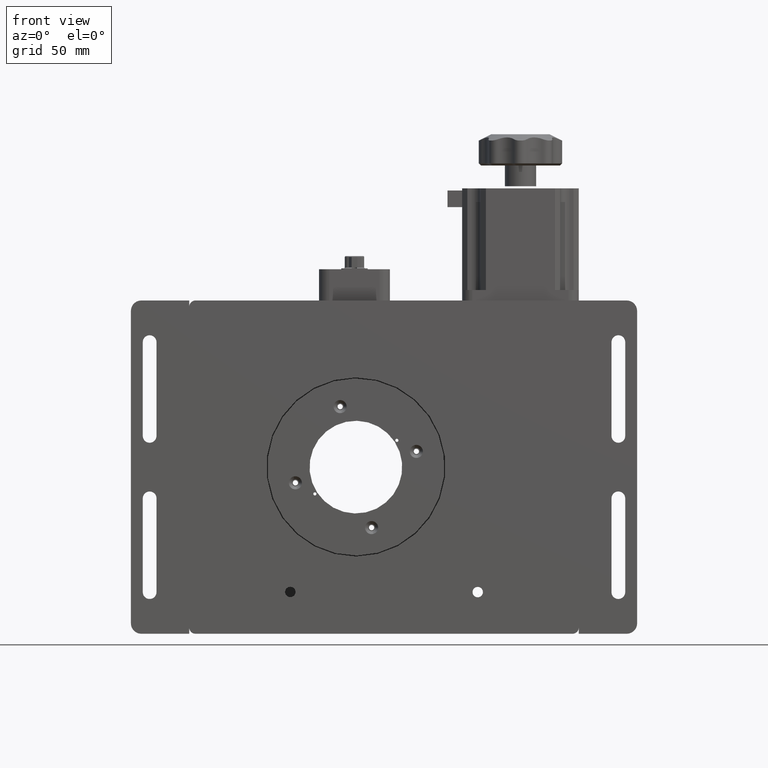
[diagram: clean part render]
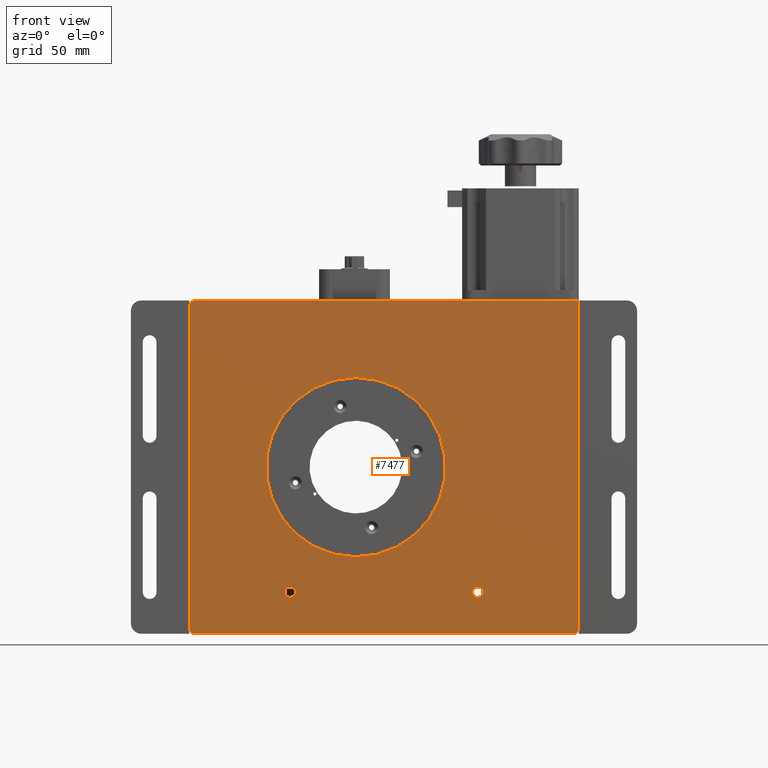
[diagram: same view with one face highlighted and labeled with its STEP entity id]
A machine part, front view. The second image highlights one B-rep face of the part: STEP entity #7477.
In plain terms, the highlighted planar face has unit normal (-0, 1, 0).
Its self-contained STEP definition (entity closure, byte-faithful):
#735 = EDGE_CURVE ( 'NONE', #28193, #68289, #54627, .T. ) ;
#1294 = DIRECTION ( 'NONE',  ( 1.120429993953749900E-016, -1.000000000000000000, -1.930919798284920200E-017 ) ) ;
#1707 = AXIS2_PLACEMENT_3D ( 'NONE', #99286, #1294, #8821 ) ;
#2558 = CIRCLE ( 'NONE', #57057, 43.00000000000009200 ) ;
#4141 = ORIENTED_EDGE ( 'NONE', *, *, #5465, .F. ) ;
#4288 = CARTESIAN_POINT ( 'NONE',  ( 173.4999999999999400, -7.500000000000016000, 43.00000000000000000 ) ) ;
#4709 = CARTESIAN_POINT ( 'NONE',  ( 141.9999999999999400, -7.500000000000008000, -57.50000000000012800 ) ) ;
#5380 = CARTESIAN_POINT ( 'NONE',  ( 280.5000000000001700, -7.499999999999976900, 80.00000000000011400 ) ) ;
#5465 = EDGE_CURVE ( 'NONE', #26763, #71153, #20291, .T. ) ;
#5960 = CARTESIAN_POINT ( 'NONE',  ( 277.5000000000001700, -7.499999999999991100, -77.00000000000014200 ) ) ;
#6769 = DIRECTION ( 'NONE',  ( -1.000000000000000000, 0.0000000000000000000, 0.0000000000000000000 ) ) ;
#6935 = CARTESIAN_POINT ( 'NONE',  ( 96.49999999999987200, -7.500000000000015100, 80.00000000000005700 ) ) ;
#6986 = CARTESIAN_POINT ( 'NONE',  ( 232.0000000000000300, -7.499999999999998200, -60.00000000000010700 ) ) ;
#7477 = ADVANCED_FACE ( 'NONE', ( #41627, #104743, #19656, #63553 ), #32632, .F. ) ;
#8821 = DIRECTION ( 'NONE',  ( -1.000000000000000000, 0.0000000000000000000, 0.0000000000000000000 ) ) ;
#9622 = VERTEX_POINT ( 'NONE', #4709 ) ;
#9768 = CARTESIAN_POINT ( 'NONE',  ( 93.49999999999981500, -7.500000000000015100, 77.00000000000005700 ) ) ;
#11509 = EDGE_CURVE ( 'NONE', #67520, #56819, #72740, .T. ) ;
#11544 = ORIENTED_EDGE ( 'NONE', *, *, #735, .T. ) ;
#14223 = DIRECTION ( 'NONE',  ( -1.000000000000000000, 0.0000000000000000000, 0.0000000000000000000 ) ) ;
#15247 = DIRECTION ( 'NONE',  ( 0.0000000000000000000, 0.0000000000000000000, 1.000000000000000000 ) ) ;
#15269 = EDGE_CURVE ( 'NONE', #88552, #9622, #77956, .T. ) ;
#16361 = VERTEX_POINT ( 'NONE', #4288 ) ;
#16805 = VERTEX_POINT ( 'NONE', #5380 ) ;
#18983 = CIRCLE ( 'NONE', #76615, 43.00000000000009200 ) ;
#19656 = FACE_BOUND ( 'NONE', #64542, .T. ) ;
#20291 = CIRCLE ( 'NONE', #82860, 2.500000000000009300 ) ;
#21908 = VERTEX_POINT ( 'NONE', #78556 ) ;
#22561 = ORIENTED_EDGE ( 'NONE', *, *, #24461, .F. ) ;
#22643 = CIRCLE ( 'NONE', #66407, 3.000000000000002700 ) ;
#23141 = VERTEX_POINT ( 'NONE', #64425 ) ;
#23505 = CARTESIAN_POINT ( 'NONE',  ( 232.0000000000000300, -7.499999999999998200, -57.50000000000009900 ) ) ;
#24461 = EDGE_CURVE ( 'NONE', #28193, #16805, #36310, .T. ) ;
#24645 = CARTESIAN_POINT ( 'NONE',  ( 93.49999999999981500, -7.500000000000015100, 80.00000000000005700 ) ) ;
#24791 = ORIENTED_EDGE ( 'NONE', *, *, #50321, .T. ) ;
#24899 = DIRECTION ( 'NONE',  ( -1.782934639968033400E-017, -1.000000000000000000, -1.930919798284919600E-017 ) ) ;
#26763 = VERTEX_POINT ( 'NONE', #23505 ) ;
#27115 = CARTESIAN_POINT ( 'NONE',  ( 93.49999999999981500, -7.500000000000015100, 80.00000000000005700 ) ) ;
#27883 = EDGE_CURVE ( 'NONE', #61161, #16361, #2558, .T. ) ;
#28193 = VERTEX_POINT ( 'NONE', #6935 ) ;
#29300 = VECTOR ( 'NONE', #32576, 1000.000000000000000 ) ;
#30061 = CARTESIAN_POINT ( 'NONE',  ( 173.4999999999999400, -7.500000000000014200, -43.00000000000010700 ) ) ;
#31174 = CARTESIAN_POINT ( 'NONE',  ( 280.5000000000001700, -7.499999999999991100, -77.00000000000014200 ) ) ;
#31334 = DIRECTION ( 'NONE',  ( -1.782934639968033400E-017, -1.000000000000000000, -1.930919798284919600E-017 ) ) ;
#32084 = AXIS2_PLACEMENT_3D ( 'NONE', #5960, #63649, #14223 ) ;
#32191 = CARTESIAN_POINT ( 'NONE',  ( 173.4999999999999400, -7.500000000000015100, -1.353388042383231000E-014 ) ) ;
#32576 = DIRECTION ( 'NONE',  ( -5.551115123125781500E-017, 1.930919798284916200E-017, -1.000000000000000000 ) ) ;
#32632 = PLANE ( 'NONE',  #90550 ) ;
#32988 = DIRECTION ( 'NONE',  ( -1.000000000000000000, -1.120429993953743000E-016, 5.551115123125781500E-017 ) ) ;
#33344 = ORIENTED_EDGE ( 'NONE', *, *, #68726, .T. ) ;
#33456 = CARTESIAN_POINT ( 'NONE',  ( 141.9999999999999400, -7.500000000000008000, -60.00000000000013500 ) ) ;
#33792 = CARTESIAN_POINT ( 'NONE',  ( 173.4999999999999400, -7.500000000000015100, -1.353388042383231000E-014 ) ) ;
#35190 = AXIS2_PLACEMENT_3D ( 'NONE', #74310, #24899, #82678 ) ;
#35472 = DIRECTION ( 'NONE',  ( 1.000000000000000000, 1.120429993953743000E-016, -5.551115123125781500E-017 ) ) ;
#36310 = LINE ( 'NONE', #27115, #99472 ) ;
#38797 = EDGE_LOOP ( 'NONE', ( #22561, #11544, #24791, #41040, #33344, #50711, #71988 ) ) ;
#40545 = DIRECTION ( 'NONE',  ( 0.0000000000000000000, 2.017120320903259600E-017, -1.000000000000000000 ) ) ;
#41040 = ORIENTED_EDGE ( 'NONE', *, *, #86500, .T. ) ;
#41627 = FACE_BOUND ( 'NONE', #47146, .T. ) ;
#41766 = DIRECTION ( 'NONE',  ( 0.0000000000000000000, 0.0000000000000000000, 1.000000000000000000 ) ) ;
#41815 = ORIENTED_EDGE ( 'NONE', *, *, #49918, .T. ) ;
#42076 = DIRECTION ( 'NONE',  ( 0.0000000000000000000, 2.017120320903259600E-017, -1.000000000000000000 ) ) ;
#43456 = AXIS2_PLACEMENT_3D ( 'NONE', #33456, #91134, #41766 ) ;
#43880 = CIRCLE ( 'NONE', #58689, 2.500000000000009300 ) ;
#47146 = EDGE_LOOP ( 'NONE', ( #72522, #63180 ) ) ;
#49918 = EDGE_CURVE ( 'NONE', #16361, #61161, #18983, .T. ) ;
#50321 = EDGE_CURVE ( 'NONE', #68289, #21908, #70592, .T. ) ;
#50338 = CIRCLE ( 'NONE', #35190, 2.500000000000009300 ) ;
#50711 = ORIENTED_EDGE ( 'NONE', *, *, #11509, .T. ) ;
#53228 = ORIENTED_EDGE ( 'NONE', *, *, #27883, .T. ) ;
#54549 = DIRECTION ( 'NONE',  ( 1.000000000000000000, 1.120429993953743000E-016, -5.551115123125781500E-017 ) ) ;
#54627 = CIRCLE ( 'NONE', #1707, 3.000000000000002700 ) ;
#55110 = VECTOR ( 'NONE', #54549, 1000.000000000000000 ) ;
#56134 = DIRECTION ( 'NONE',  ( 1.120429993953749900E-016, -1.000000000000000000, -1.930919798284920200E-017 ) ) ;
#56819 = VERTEX_POINT ( 'NONE', #31174 ) ;
#57057 = AXIS2_PLACEMENT_3D ( 'NONE', #32191, #89877, #40545 ) ;
#58689 = AXIS2_PLACEMENT_3D ( 'NONE', #80771, #31334, #89034 ) ;
#61161 = VERTEX_POINT ( 'NONE', #30061 ) ;
#63180 = ORIENTED_EDGE ( 'NONE', *, *, #15269, .F. ) ;
#63553 = FACE_OUTER_BOUND ( 'NONE', #38797, .T. ) ;
#63649 = DIRECTION ( 'NONE',  ( 1.120429993953749900E-016, -1.000000000000000000, -1.930919798284920200E-017 ) ) ;
#64425 = CARTESIAN_POINT ( 'NONE',  ( 96.49999999999987200, -7.500000000000029300, -80.00000000000019900 ) ) ;
#64542 = EDGE_LOOP ( 'NONE', ( #53228, #41815 ) ) ;
#64658 = DIRECTION ( 'NONE',  ( -1.782934639968033400E-017, -1.000000000000000000, -1.930919798284919600E-017 ) ) ;
#66407 = AXIS2_PLACEMENT_3D ( 'NONE', #105474, #56134, #6769 ) ;
#67520 = VERTEX_POINT ( 'NONE', #101766 ) ;
#68289 = VERTEX_POINT ( 'NONE', #9768 ) ;
#68726 = EDGE_CURVE ( 'NONE', #23141, #67520, #88619, .T. ) ;
#70592 = LINE ( 'NONE', #73664, #29300 ) ;
#71153 = VERTEX_POINT ( 'NONE', #84465 ) ;
#71542 = VECTOR ( 'NONE', #104692, 1000.000000000000000 ) ;
#71988 = ORIENTED_EDGE ( 'NONE', *, *, #77104, .F. ) ;
#72522 = ORIENTED_EDGE ( 'NONE', *, *, #74589, .F. ) ;
#72740 = CIRCLE ( 'NONE', #32084, 3.000000000000002700 ) ;
#73664 = CARTESIAN_POINT ( 'NONE',  ( 93.49999999999981500, -7.500000000000015100, 80.00000000000005700 ) ) ;
#74310 = CARTESIAN_POINT ( 'NONE',  ( 232.0000000000000300, -7.499999999999998200, -60.00000000000010700 ) ) ;
#74589 = EDGE_CURVE ( 'NONE', #9622, #88552, #43880, .T. ) ;
#76615 = AXIS2_PLACEMENT_3D ( 'NONE', #33792, #91448, #42076 ) ;
#76989 = CARTESIAN_POINT ( 'NONE',  ( 141.9999999999999400, -7.500000000000008000, -62.50000000000014200 ) ) ;
#77104 = EDGE_CURVE ( 'NONE', #16805, #56819, #93468, .T. ) ;
#77956 = CIRCLE ( 'NONE', #43456, 2.500000000000009300 ) ;
#78556 = CARTESIAN_POINT ( 'NONE',  ( 93.49999999999981500, -7.500000000000029300, -77.00000000000019900 ) ) ;
#80771 = CARTESIAN_POINT ( 'NONE',  ( 141.9999999999999400, -7.500000000000008000, -60.00000000000013500 ) ) ;
#81348 = CARTESIAN_POINT ( 'NONE',  ( 280.5000000000001700, -7.499999999999976900, 80.00000000000011400 ) ) ;
#82412 = DIRECTION ( 'NONE',  ( -1.120429993953743000E-016, 1.000000000000000000, 1.930919798284920200E-017 ) ) ;
#82643 = ORIENTED_EDGE ( 'NONE', *, *, #103850, .F. ) ;
#82678 = DIRECTION ( 'NONE',  ( 0.0000000000000000000, 0.0000000000000000000, 1.000000000000000000 ) ) ;
#82860 = AXIS2_PLACEMENT_3D ( 'NONE', #6986, #64658, #15247 ) ;
#84465 = CARTESIAN_POINT ( 'NONE',  ( 232.0000000000000300, -7.499999999999998200, -62.50000000000011400 ) ) ;
#86500 = EDGE_CURVE ( 'NONE', #21908, #23141, #22643, .T. ) ;
#88552 = VERTEX_POINT ( 'NONE', #76989 ) ;
#88619 = LINE ( 'NONE', #103897, #55110 ) ;
#89034 = DIRECTION ( 'NONE',  ( 0.0000000000000000000, 0.0000000000000000000, 1.000000000000000000 ) ) ;
#89877 = DIRECTION ( 'NONE',  ( 1.782934639968033400E-017, 1.000000000000000000, 1.930919798284919600E-017 ) ) ;
#90550 = AXIS2_PLACEMENT_3D ( 'NONE', #24645, #82412, #32988 ) ;
#91134 = DIRECTION ( 'NONE',  ( -1.782934639968033400E-017, -1.000000000000000000, -1.930919798284919600E-017 ) ) ;
#91448 = DIRECTION ( 'NONE',  ( 1.782934639968033400E-017, 1.000000000000000000, 1.930919798284919600E-017 ) ) ;
#93468 = LINE ( 'NONE', #81348, #71542 ) ;
#99286 = CARTESIAN_POINT ( 'NONE',  ( 96.49999999999987200, -7.500000000000011500, 77.00000000000005700 ) ) ;
#99367 = EDGE_LOOP ( 'NONE', ( #4141, #82643 ) ) ;
#99472 = VECTOR ( 'NONE', #35472, 1000.000000000000000 ) ;
#101766 = CARTESIAN_POINT ( 'NONE',  ( 277.5000000000001700, -7.499999999999991100, -80.00000000000014200 ) ) ;
#103850 = EDGE_CURVE ( 'NONE', #71153, #26763, #50338, .T. ) ;
#103897 = CARTESIAN_POINT ( 'NONE',  ( 93.49999999999981500, -7.500000000000029300, -80.00000000000019900 ) ) ;
#104692 = DIRECTION ( 'NONE',  ( -5.551115123125781500E-017, 1.930919798284916200E-017, -1.000000000000000000 ) ) ;
#104743 = FACE_BOUND ( 'NONE', #99367, .T. ) ;
#105474 = CARTESIAN_POINT ( 'NONE',  ( 96.49999999999987200, -7.500000000000029300, -77.00000000000019900 ) ) ;